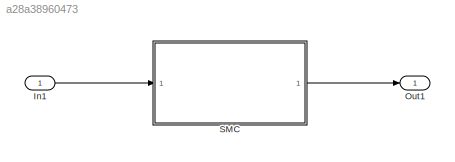
MODEL slx_a28a38960473
KIND model
CONFIG AbsTol = auto
CONFIG EnableMultiTasking = off
CONFIG FixedStep = auto
CONFIG MaxStep = auto
CONFIG MinStep = auto
CONFIG RelTol = 1e-3
CONFIG SampleTimeConstraint = Unconstrained
CONFIG Solver = VariableStepAuto
CONFIG SolverName = VariableStepAuto
CONFIG StartTime = 0.0
CONFIG StopTime = 10.0
BLOCK [Inport] In1
  IconDisplay = Port number
BLOCK [Outport] Out1
  IconDisplay = Port number
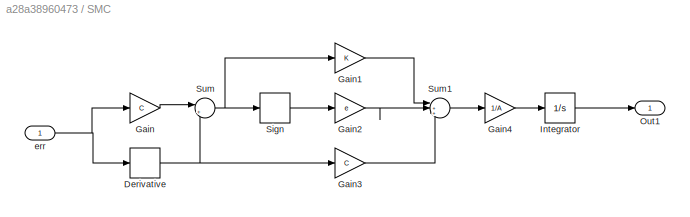
BLOCK [SubSystem] SMC
  Ports = [1, 1]
  RequestExecContextInheritance = off
BLOCK [Derivative] SMC/Derivative
BLOCK [Gain] SMC/Gain
  Gain = C
  OutDataTypeStr = Inherit: Inherit via internal rule
  ParamDataTypeStr = Inherit: Inherit via internal rule
  SaturateOnIntegerOverflow = off
BLOCK [Gain] SMC/Gain1
  Gain = K
  OutDataTypeStr = Inherit: Inherit via internal rule
  ParamDataTypeStr = Inherit: Inherit via internal rule
  SaturateOnIntegerOverflow = off
BLOCK [Gain] SMC/Gain2
  Gain = e
  OutDataTypeStr = Inherit: Inherit via internal rule
  ParamDataTypeStr = Inherit: Inherit via internal rule
  SaturateOnIntegerOverflow = off
BLOCK [Gain] SMC/Gain3
  Gain = C
  OutDataTypeStr = Inherit: Inherit via internal rule
  ParamDataTypeStr = Inherit: Inherit via internal rule
  SaturateOnIntegerOverflow = off
BLOCK [Gain] SMC/Gain4
  Gain = 1/A
  OutDataTypeStr = Inherit: Inherit via internal rule
  ParamDataTypeStr = Inherit: Inherit via internal rule
  SaturateOnIntegerOverflow = off
BLOCK [Integrator] SMC/Integrator
  Ports = [1, 1]
BLOCK [Outport] SMC/Out1
  IconDisplay = Port number
BLOCK [Signum] SMC/Sign
BLOCK [Sum] SMC/Sum
  IconShape = round
  InputSameDT = off
  Inputs = |++
  OutDataTypeStr = Inherit: Inherit via internal rule
  Ports = [2, 1]
  SaturateOnIntegerOverflow = off
BLOCK [Sum] SMC/Sum1
  IconShape = round
  InputSameDT = off
  Inputs = |+++
  OutDataTypeStr = Inherit: Inherit via internal rule
  Ports = [3, 1]
  SaturateOnIntegerOverflow = off
BLOCK [Inport] SMC/err
  IconDisplay = Port number
LINE In1:1 -> SMC:1
NET SMC/Derivative:1 -> SMC/Gain3:1, SMC/Sum:2
LINE SMC/Gain1:1 -> SMC/Sum1:1
LINE SMC/Gain2:1 -> SMC/Sum1:2
LINE SMC/Gain3:1 -> SMC/Sum1:3
LINE SMC/Gain4:1 -> SMC/Integrator:1
LINE SMC/Gain:1 -> SMC/Sum:1
LINE SMC/Integrator:1 -> SMC/Out1:1
LINE SMC/Sign:1 -> SMC/Gain2:1
LINE SMC/Sum1:1 -> SMC/Gain4:1
NET SMC/Sum:1 -> SMC/Gain1:1, SMC/Sign:1
NET SMC/err:1 -> SMC/Derivative:1, SMC/Gain:1
LINE SMC:1 -> Out1:1
note: NET lines group one-source signal fan-out (src -> all destinations, sorted); 1:1 wires keep LINE
